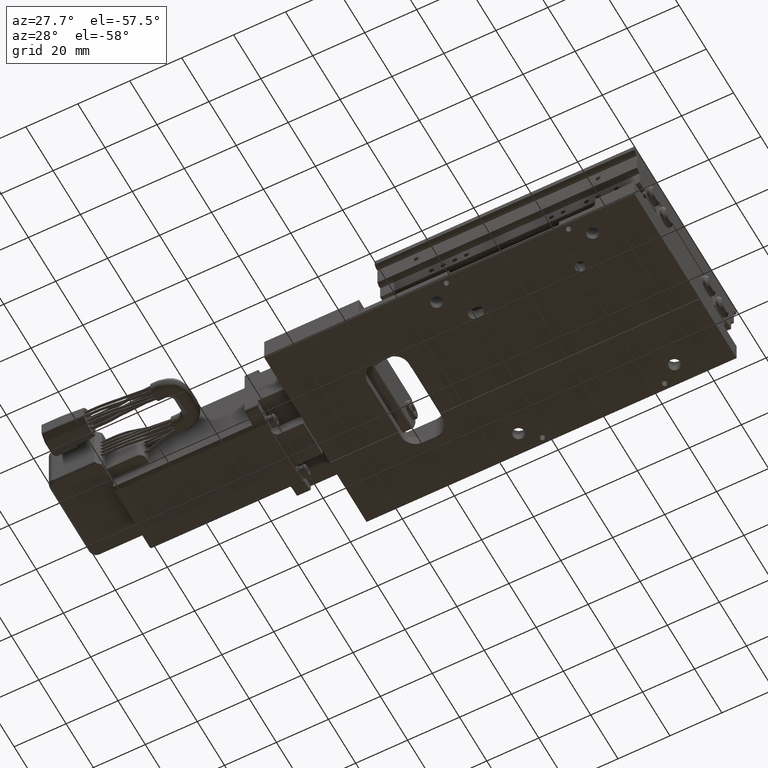
[diagram: clean part render]
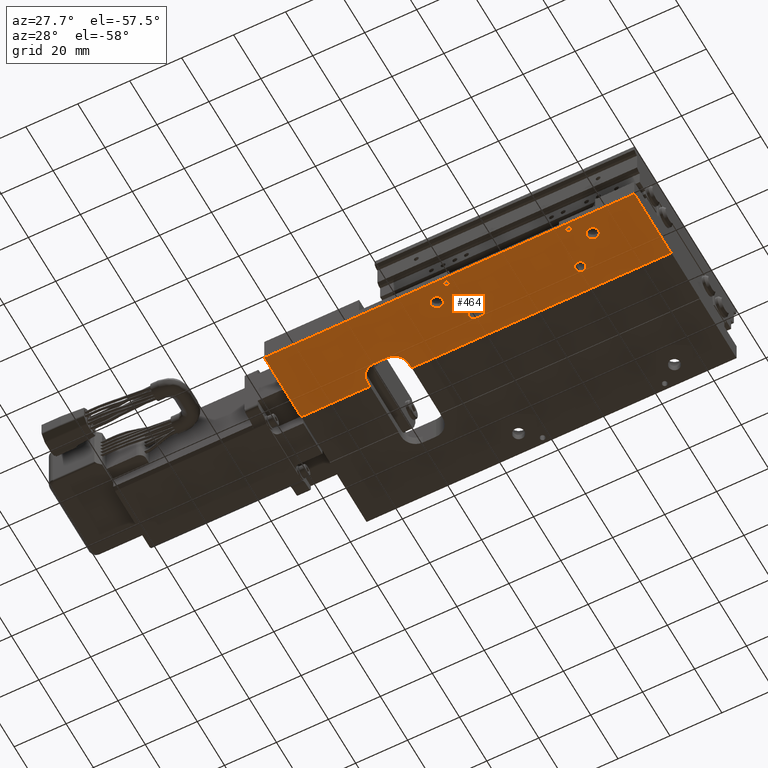
[diagram: same view with one face highlighted and labeled with its STEP entity id]
A machine part, auxiliary view. The second image highlights one B-rep face of the part: STEP entity #464.
In plain terms, the highlighted planar face has unit normal (0, 0, -1).
Its self-contained STEP definition (entity closure, byte-faithful):
#464=ADVANCED_FACE('',(#4363,#4364,#4365,#4366,#4367,#4368,#4369),#4362,.T.);
#4362=PLANE('',#14357);
#4363=FACE_OUTER_BOUND('',#14358,.T.);
#4364=FACE_BOUND('',#14359,.T.);
#4365=FACE_BOUND('',#14360,.T.);
#4366=FACE_BOUND('',#14361,.T.);
#4367=FACE_BOUND('',#14362,.T.);
#4368=FACE_BOUND('',#14363,.T.);
#4369=FACE_BOUND('',#14364,.T.);
#14354=CARTESIAN_POINT('',(6.00000000000E+01,-7.80000000000E+00,-5.20417042793E-15));
#14355=DIRECTION('',(0.00000000000E+00,0.00000000000E+00,-1.00000000000E+00));
#14356=DIRECTION('',(0.00000000000E+00,-1.00000000000E+00,0.00000000000E+00));
#14357=AXIS2_PLACEMENT_3D('',#14354,#14355,#14356);
#14358=EDGE_LOOP('',(#20356,#20357,#20358,#20359,#20360,#20361,#20362,#20363,#20364,#20365));
#14359=EDGE_LOOP('',(#20366,#20367));
#14360=EDGE_LOOP('',(#20368,#20369));
#14361=EDGE_LOOP('',(#20370,#20371));
#14362=EDGE_LOOP('',(#20372,#20373));
#14363=EDGE_LOOP('',(#20374,#20375));
#14364=EDGE_LOOP('',(#20376,#20377,#20378,#20379));
#20356=ORIENTED_EDGE('',*,*,#23699,.F.);
#20357=ORIENTED_EDGE('',*,*,#24196,.T.);
#20358=ORIENTED_EDGE('',*,*,#24301,.F.);
#20359=ORIENTED_EDGE('',*,*,#23645,.T.);
#20360=ORIENTED_EDGE('',*,*,#24291,.F.);
#20361=ORIENTED_EDGE('',*,*,#24270,.F.);
#20362=ORIENTED_EDGE('',*,*,#24217,.T.);
#20363=ORIENTED_EDGE('',*,*,#24264,.T.);
#20364=ORIENTED_EDGE('',*,*,#24253,.F.);
#20365=ORIENTED_EDGE('',*,*,#24314,.F.);
#20366=ORIENTED_EDGE('',*,*,#24665,.T.);
#20367=ORIENTED_EDGE('',*,*,#24666,.T.);
#20368=ORIENTED_EDGE('',*,*,#24667,.T.);
#20369=ORIENTED_EDGE('',*,*,#24668,.T.);
#20370=ORIENTED_EDGE('',*,*,#24669,.T.);
#20371=ORIENTED_EDGE('',*,*,#24670,.T.);
#20372=ORIENTED_EDGE('',*,*,#24671,.T.);
#20373=ORIENTED_EDGE('',*,*,#24672,.T.);
#20374=ORIENTED_EDGE('',*,*,#24673,.T.);
#20375=ORIENTED_EDGE('',*,*,#24674,.T.);
#20376=ORIENTED_EDGE('',*,*,#24287,.T.);
#20377=ORIENTED_EDGE('',*,*,#24288,.T.);
#20378=ORIENTED_EDGE('',*,*,#24281,.T.);
#20379=ORIENTED_EDGE('',*,*,#24289,.T.);
#23645=EDGE_CURVE('',#26526,#26518,#26527,.T.);
#23699=EDGE_CURVE('',#26893,#26900,#26901,.T.);
#24196=EDGE_CURVE('',#26893,#30239,#30240,.T.);
#24217=EDGE_CURVE('',#30380,#30373,#30381,.T.);
#24253=EDGE_CURVE('',#30619,#30558,#30626,.T.);
#24264=EDGE_CURVE('',#30373,#30558,#30695,.T.);
#24270=EDGE_CURVE('',#30380,#30735,#30736,.T.);
#24281=EDGE_CURVE('',#30789,#30803,#30810,.T.);
#24287=EDGE_CURVE('',#30836,#30843,#30850,.T.);
#24288=EDGE_CURVE('',#30843,#30789,#30856,.T.);
#24289=EDGE_CURVE('',#30803,#30836,#30862,.T.);
#24291=EDGE_CURVE('',#30735,#26518,#30874,.T.);
#24301=EDGE_CURVE('',#26526,#30239,#30940,.T.);
#24314=EDGE_CURVE('',#26900,#30619,#31023,.T.);
#24665=EDGE_CURVE('',#33376,#33377,#33378,.T.);
#24666=EDGE_CURVE('',#33377,#33376,#33384,.T.);
#24667=EDGE_CURVE('',#33390,#33391,#33392,.T.);
#24668=EDGE_CURVE('',#33391,#33390,#33398,.T.);
#24669=EDGE_CURVE('',#33404,#33405,#33406,.T.);
#24670=EDGE_CURVE('',#33405,#33404,#33412,.T.);
#24671=EDGE_CURVE('',#33418,#33419,#33420,.T.);
#24672=EDGE_CURVE('',#33419,#33418,#33426,.T.);
#24673=EDGE_CURVE('',#33432,#33433,#33434,.T.);
#24674=EDGE_CURVE('',#33433,#33432,#33440,.T.);
#26518=VERTEX_POINT('',#43319);
#26526=VERTEX_POINT('',#43324);
#26527=CIRCLE('',#43328,5.50000000000E+00);
#26893=VERTEX_POINT('',#43560);
#26900=VERTEX_POINT('',#43564);
#26901=LINE('',#43565,#43566);
#30239=VERTEX_POINT('',#45640);
#30240=CIRCLE('',#45644,5.50000000000E+00);
#30373=VERTEX_POINT('',#45724);
#30380=VERTEX_POINT('',#45728);
#30381=LINE('',#45729,#45730);
#30558=VERTEX_POINT('',#45842);
#30619=VERTEX_POINT('',#45876);
#30626=LINE('',#45880,#45881);
#30695=LINE('',#45916,#45917);
#30735=VERTEX_POINT('',#45938);
#30736=LINE('',#45939,#45940);
#30789=VERTEX_POINT('',#45970);
#30803=VERTEX_POINT('',#45979);
#30810=CIRCLE('',#45986,2.00000000000E+00);
#30836=VERTEX_POINT('',#45999);
#30843=VERTEX_POINT('',#46003);
#30850=CIRCLE('',#46010,2.00000000000E+00);
#30856=LINE('',#46011,#46012);
#30862=LINE('',#46014,#46015);
#30874=LINE('',#46020,#46021);
#30940=LINE('',#46062,#46063);
#31023=LINE('',#46112,#46113);
#33376=VERTEX_POINT('',#47990);
#33377=VERTEX_POINT('',#47991);
#33378=CIRCLE('',#47995,1.00000000000E+00);
#33384=CIRCLE('',#47999,1.00000000000E+00);
#33390=VERTEX_POINT('',#48000);
#33391=VERTEX_POINT('',#48001);
#33392=CIRCLE('',#48005,1.00000000000E+00);
#33398=CIRCLE('',#48009,1.00000000000E+00);
#33404=VERTEX_POINT('',#48010);
#33405=VERTEX_POINT('',#48011);
#33406=CIRCLE('',#48015,2.00000000000E+00);
#33412=CIRCLE('',#48019,2.00000000000E+00);
#33418=VERTEX_POINT('',#48020);
#33419=VERTEX_POINT('',#48021);
#33420=CIRCLE('',#48025,2.25000000000E+00);
#33426=CIRCLE('',#48029,2.25000000000E+00);
#33432=VERTEX_POINT('',#48030);
#33433=VERTEX_POINT('',#48031);
#33434=CIRCLE('',#48035,2.25000000000E+00);
#33440=CIRCLE('',#48039,2.25000000000E+00);
#43319=CARTESIAN_POINT('',(-5.00000000000E+01,-1.25000000000E+01,-5.20417042793E-15));
#43324=CARTESIAN_POINT('',(-5.55000000000E+01,-1.80000000000E+01,-5.20417042793E-15));
#43325=CARTESIAN_POINT('',(-5.55000000000E+01,-1.25000000000E+01,-5.63785129692E-15));
#43326=DIRECTION('',(0.00000000000E+00,-0.00000000000E+00,1.00000000000E+00));
#43327=DIRECTION('',(-0.00000000000E+00,-1.00000000000E+00,-0.00000000000E+00));
#43328=AXIS2_PLACEMENT_3D('',#43325,#43326,#43327);
#43560=CARTESIAN_POINT('',(-6.60000000000E+01,-1.25000000000E+01,-5.20417042793E-15));
#43564=CARTESIAN_POINT('',(-6.60000000000E+01,-1.05000000000E+01,-1.21430643318E-14));
#43565=CARTESIAN_POINT('',(-6.60000000000E+01,-1.25000000000E+01,-5.20417042793E-15));
#43566=VECTOR('',#43567,2.00000000000E+00);
#43567=DIRECTION('',(0.00000000000E+00,1.00000000000E+00,0.00000000000E+00));
#45640=CARTESIAN_POINT('',(-6.05000000000E+01,-1.80000000000E+01,-5.20417042793E-15));
#45641=CARTESIAN_POINT('',(-6.05000000000E+01,-1.25000000000E+01,-5.63785129692E-15));
#45642=DIRECTION('',(0.00000000000E+00,-0.00000000000E+00,1.00000000000E+00));
#45643=DIRECTION('',(-0.00000000000E+00,-1.00000000000E+00,-0.00000000000E+00));
#45644=AXIS2_PLACEMENT_3D('',#45641,#45642,#45643);
#45724=CARTESIAN_POINT('',(5.00000000000E+01,-3.75000000000E+01,-5.20417042793E-15));
#45728=CARTESIAN_POINT('',(5.00000000000E+01,-1.05000000000E+01,-1.21430643318E-14));
#45729=CARTESIAN_POINT('',(5.00000000000E+01,-1.05000000000E+01,-5.20417042793E-15));
#45730=VECTOR('',#45731,2.70000000000E+01);
#45731=DIRECTION('',(0.00000000000E+00,-1.00000000000E+00,0.00000000000E+00));
#45842=CARTESIAN_POINT('',(-9.25000000000E+01,-3.75000000000E+01,-5.20417042793E-15));
#45876=CARTESIAN_POINT('',(-9.25000000000E+01,-1.05000000000E+01,-1.21430643318E-14));
#45880=CARTESIAN_POINT('',(-9.25000000000E+01,-1.05000000000E+01,-5.20417042793E-15));
#45881=VECTOR('',#45882,2.70000000000E+01);
#45882=DIRECTION('',(0.00000000000E+00,-1.00000000000E+00,0.00000000000E+00));
#45916=CARTESIAN_POINT('',(5.00000000000E+01,-3.75000000000E+01,-5.20417042793E-15));
#45917=VECTOR('',#45918,1.42500000000E+02);
#45918=DIRECTION('',(-1.00000000000E+00,0.00000000000E+00,0.00000000000E+00));
#45938=CARTESIAN_POINT('',(-5.00000000000E+01,-1.05000000000E+01,-1.21430643318E-14));
#45939=CARTESIAN_POINT('',(5.00000000000E+01,-1.05000000000E+01,-1.21430643318E-14));
#45940=VECTOR('',#45941,1.00000000000E+02);
#45941=DIRECTION('',(-1.00000000000E+00,0.00000000000E+00,0.00000000000E+00));
#45970=CARTESIAN_POINT('',(-2.10000000000E+01,-1.80000000000E+01,3.18261042520E-11));
#45979=CARTESIAN_POINT('',(-2.10000000000E+01,-2.20000000000E+01,3.18261042520E-11));
#45983=CARTESIAN_POINT('',(-2.10000000000E+01,-2.00000000000E+01,3.18261042520E-11));
#45984=DIRECTION('',(0.00000000000E+00,0.00000000000E+00,1.00000000000E+00));
#45985=DIRECTION('',(-0.00000000000E+00,1.00000000000E+00,-0.00000000000E+00));
#45986=AXIS2_PLACEMENT_3D('',#45983,#45984,#45985);
#45999=CARTESIAN_POINT('',(-1.90000000000E+01,-2.20000000000E+01,-5.20417042793E-15));
#46003=CARTESIAN_POINT('',(-1.90000000000E+01,-1.80000000000E+01,3.18261042520E-11));
#46007=CARTESIAN_POINT('',(-1.90000000000E+01,-2.00000000000E+01,3.18261042520E-11));
#46008=DIRECTION('',(0.00000000000E+00,0.00000000000E+00,1.00000000000E+00));
#46009=DIRECTION('',(-0.00000000000E+00,1.00000000000E+00,-0.00000000000E+00));
#46010=AXIS2_PLACEMENT_3D('',#46007,#46008,#46009);
#46011=CARTESIAN_POINT('',(-1.90000000000E+01,-1.80000000000E+01,3.18261042520E-11));
#46012=VECTOR('',#46013,2.00000000000E+00);
#46013=DIRECTION('',(-1.00000000000E+00,0.00000000000E+00,0.00000000000E+00));
#46014=CARTESIAN_POINT('',(-2.10000000000E+01,-2.20000000000E+01,3.18261042520E-11));
#46015=VECTOR('',#46016,2.00000000000E+00);
#46016=DIRECTION('',(1.00000000000E+00,0.00000000000E+00,0.00000000000E+00));
#46020=CARTESIAN_POINT('',(-5.00000000000E+01,-1.05000000000E+01,-5.20417042793E-15));
#46021=VECTOR('',#46022,2.00000000000E+00);
#46022=DIRECTION('',(0.00000000000E+00,-1.00000000000E+00,0.00000000000E+00));
#46062=CARTESIAN_POINT('',(-5.55000000000E+01,-1.80000000000E+01,-5.20417042793E-15));
#46063=VECTOR('',#46064,5.00000000000E+00);
#46064=DIRECTION('',(-1.00000000000E+00,0.00000000000E+00,0.00000000000E+00));
#46112=CARTESIAN_POINT('',(-6.60000000000E+01,-1.05000000000E+01,-1.21430643318E-14));
#46113=VECTOR('',#46114,2.65000000000E+01);
#46114=DIRECTION('',(-1.00000000000E+00,0.00000000000E+00,0.00000000000E+00));
#47990=CARTESIAN_POINT('',(-2.25000000000E+01,-3.52500000000E+01,-7.72819308548E-13));
#47991=CARTESIAN_POINT('',(-2.45000000000E+01,-3.52500000000E+01,-7.72819308548E-13));
#47992=CARTESIAN_POINT('',(-2.35000000000E+01,-3.52500000000E+01,-7.72819308548E-13));
#47993=DIRECTION('',(0.00000000000E+00,0.00000000000E+00,1.00000000000E+00));
#47994=DIRECTION('',(1.00000000000E+00,-1.22464679915E-16,0.00000000000E+00));
#47995=AXIS2_PLACEMENT_3D('',#47992,#47993,#47994);
#47996=CARTESIAN_POINT('',(-2.35000000000E+01,-3.52500000000E+01,-7.72819308548E-13));
#47997=DIRECTION('',(0.00000000000E+00,0.00000000000E+00,1.00000000000E+00));
#47998=DIRECTION('',(1.00000000000E+00,-1.22464679915E-16,0.00000000000E+00));
#47999=AXIS2_PLACEMENT_3D('',#47996,#47997,#47998);
#48000=CARTESIAN_POINT('',(2.45000000000E+01,-3.52500000000E+01,-7.72819308548E-13));
#48001=CARTESIAN_POINT('',(2.25000000000E+01,-3.52500000000E+01,-7.72819308548E-13));
#48002=CARTESIAN_POINT('',(2.35000000000E+01,-3.52500000000E+01,-7.72819308548E-13));
#48003=DIRECTION('',(0.00000000000E+00,0.00000000000E+00,1.00000000000E+00));
#48004=DIRECTION('',(1.00000000000E+00,-1.22464679915E-16,0.00000000000E+00));
#48005=AXIS2_PLACEMENT_3D('',#48002,#48003,#48004);
#48006=CARTESIAN_POINT('',(2.35000000000E+01,-3.52500000000E+01,-7.72819308548E-13));
#48007=DIRECTION('',(0.00000000000E+00,0.00000000000E+00,1.00000000000E+00));
#48008=DIRECTION('',(1.00000000000E+00,-1.22464679915E-16,0.00000000000E+00));
#48009=AXIS2_PLACEMENT_3D('',#48006,#48007,#48008);
#48010=CARTESIAN_POINT('',(2.00000000000E+01,-2.20000000000E+01,3.18261042520E-11));
#48011=CARTESIAN_POINT('',(2.00000000000E+01,-1.80000000000E+01,3.18261042520E-11));
#48012=CARTESIAN_POINT('',(2.00000000000E+01,-2.00000000000E+01,3.18261042520E-11));
#48013=DIRECTION('',(0.00000000000E+00,0.00000000000E+00,1.00000000000E+00));
#48014=DIRECTION('',(-1.22464679915E-16,-1.00000000000E+00,0.00000000000E+00));
#48015=AXIS2_PLACEMENT_3D('',#48012,#48013,#48014);
#48016=CARTESIAN_POINT('',(2.00000000000E+01,-2.00000000000E+01,3.18261042520E-11));
#48017=DIRECTION('',(0.00000000000E+00,0.00000000000E+00,1.00000000000E+00));
#48018=DIRECTION('',(-1.22464679915E-16,-1.00000000000E+00,0.00000000000E+00));
#48019=AXIS2_PLACEMENT_3D('',#48016,#48017,#48018);
#48020=CARTESIAN_POINT('',(3.00000000000E+01,-3.22500000000E+01,-6.07153216592E-15));
#48021=CARTESIAN_POINT('',(3.00000000000E+01,-2.77500000000E+01,-6.07153216592E-15));
#48022=CARTESIAN_POINT('',(3.00000000000E+01,-3.00000000000E+01,-6.07153216592E-15));
#48023=DIRECTION('',(0.00000000000E+00,0.00000000000E+00,1.00000000000E+00));
#48024=DIRECTION('',(-1.22464679915E-16,-1.00000000000E+00,0.00000000000E+00));
#48025=AXIS2_PLACEMENT_3D('',#48022,#48023,#48024);
#48026=CARTESIAN_POINT('',(3.00000000000E+01,-3.00000000000E+01,-6.07153216592E-15));
#48027=DIRECTION('',(0.00000000000E+00,0.00000000000E+00,1.00000000000E+00));
#48028=DIRECTION('',(-1.22464679915E-16,-1.00000000000E+00,0.00000000000E+00));
#48029=AXIS2_PLACEMENT_3D('',#48026,#48027,#48028);
#48030=CARTESIAN_POINT('',(-3.00000000000E+01,-3.22500000000E+01,-6.07153216592E-15));
#48031=CARTESIAN_POINT('',(-3.00000000000E+01,-2.77500000000E+01,-6.07153216592E-15));
#48032=CARTESIAN_POINT('',(-3.00000000000E+01,-3.00000000000E+01,-6.07153216592E-15));
#48033=DIRECTION('',(0.00000000000E+00,0.00000000000E+00,1.00000000000E+00));
#48034=DIRECTION('',(-1.22464679915E-16,-1.00000000000E+00,0.00000000000E+00));
#48035=AXIS2_PLACEMENT_3D('',#48032,#48033,#48034);
#48036=CARTESIAN_POINT('',(-3.00000000000E+01,-3.00000000000E+01,-6.07153216592E-15));
#48037=DIRECTION('',(0.00000000000E+00,0.00000000000E+00,1.00000000000E+00));
#48038=DIRECTION('',(-1.22464679915E-16,-1.00000000000E+00,0.00000000000E+00));
#48039=AXIS2_PLACEMENT_3D('',#48036,#48037,#48038);